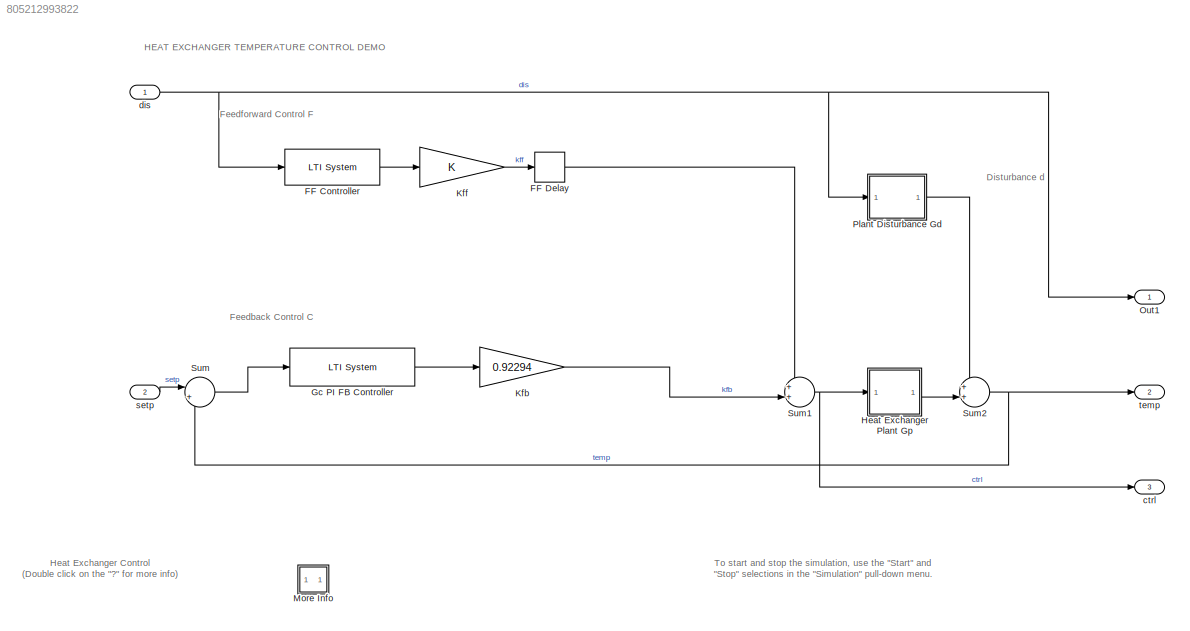
MODEL slx_805212993822
KIND model
CONFIG AbsTol = auto
CONFIG EnableMultiTasking = on
CONFIG FixedStep = 2
CONFIG MaxStep = auto
CONFIG MinStep = auto
CONFIG RelTol = 1e-3
CONFIG SampleTimeConstraint = Unconstrained
CONFIG Solver = ode4
CONFIG SolverName = ode4
CONFIG StartTime = 0.0
CONFIG StopTime = 200
BLOCK [Reference] FF Controller  REF=cstblocks/LTI System
  Ports = [1, 1]
  SourceBlock = cstblocks/LTI System
  SourceProductBaseCode = CT
  SourceType = LTI Block
BLOCK [TransportDelay] FF Delay
  CloseFcn = disp('hello')
  DelayTime = 25
  Ports = [1, 1]
BLOCK [Reference] Gc PI FB Controller  REF=cstblocks/LTI System
  Ports = [1, 1]
  SourceBlock = cstblocks/LTI System
  SourceProductBaseCode = CT
  SourceType = LTI Block
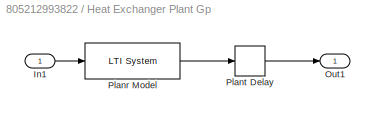
BLOCK [SubSystem] Heat Exchanger Plant Gp
  Ports = [1, 1]
  RequestExecContextInheritance = off
BLOCK [Inport] Heat Exchanger Plant Gp/In1
BLOCK [Outport] Heat Exchanger Plant Gp/Out1
BLOCK [Reference] Heat Exchanger Plant Gp/Planr Model  REF=cstblocks/LTI System
  Ports = [1, 1]
  SourceBlock = cstblocks/LTI System
  SourceProductBaseCode = CT
  SourceType = LTI Block
BLOCK [TransportDelay] Heat Exchanger Plant Gp/Plant Delay
  DelayTime = 14.7
  Ports = [1, 1]
BLOCK [Gain] Kfb
  CloseFcn = disp('hello')
  Gain = 0.92294
  OutDataTypeStr = Inherit: Same as input
  ParamDataTypeStr = Inherit: Same as input
  SaturateOnIntegerOverflow = on
BLOCK [Gain] Kff
  CloseFcn = disp('hello')
  OutDataTypeStr = Inherit: Same as input
  ParamDataTypeStr = Inherit: Same as input
  SaturateOnIntegerOverflow = on
BLOCK [SubSystem] More Info
  Ports = []
  RequestExecContextInheritance = off
BLOCK [Outport] Out1
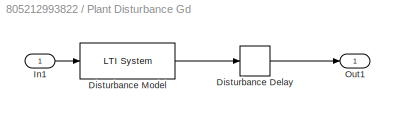
BLOCK [SubSystem] Plant Disturbance Gd
  Ports = [1, 1]
  RequestExecContextInheritance = off
BLOCK [TransportDelay] Plant Disturbance Gd/Disturbance Delay
  DelayTime = 35
  Ports = [1, 1]
BLOCK [Reference] Plant Disturbance Gd/Disturbance Model  REF=cstblocks/LTI System
  Ports = [1, 1]
  SourceBlock = cstblocks/LTI System
  SourceProductBaseCode = CT
  SourceType = LTI Block
BLOCK [Inport] Plant Disturbance Gd/In1
BLOCK [Outport] Plant Disturbance Gd/Out1
BLOCK [Sum] Sum
  InputSameDT = on
  Inputs = |+-
  OutDataTypeStr = Inherit: Same as first input
  Ports = [2, 1]
  SaturateOnIntegerOverflow = on
BLOCK [Sum] Sum1
  InputSameDT = on
  Inputs = ++|
  OutDataTypeStr = Inherit: Same as first input
  Ports = [2, 1]
  SaturateOnIntegerOverflow = on
BLOCK [Sum] Sum2
  InputSameDT = on
  Inputs = ++|
  OutDataTypeStr = Inherit: Same as first input
  Ports = [2, 1]
  SaturateOnIntegerOverflow = on
BLOCK [Outport] ctrl
  Port = 3
BLOCK [Inport] dis
BLOCK [Inport] setp
  Port = 2
BLOCK [Outport] temp
  Port = 2
ANNOTATION (root): Disturbance d
ANNOTATION (root): Feedback Control C
ANNOTATION (root): Feedforward Control F
ANNOTATION (root): HEAT EXCHANGER TEMPERATURE CONTROL DEMO
ANNOTATION (root): Heat Exchanger Control (Double click on the "?" for more info)
ANNOTATION (root): To start and stop the simulation, use the "Start" and "Stop" selections in the "Simulation" pull-down menu.
ANNOTATION More Info: This demonstration shows the temperature control of a continuous stirred tank reactor (CSTR) using a heat exchanger. The controllers have been designed to regulate the temperature of the liquid in the tank when subject to disturbances in the temperature of inlet flow.
ANNOTATION More Info: Try experimenting with switching between using Feedforward and/or Feedback control. Type heatex at the MATLAB prompt to see the demo.
LINE FF Controller:1 -> Kff:1
LINE FF Delay:1 -> Sum1:1
LINE Gc PI FB Controller:1 -> Kfb:1
LINE Heat Exchanger Plant Gp/In1:1 -> Heat Exchanger Plant Gp/Planr Model:1
LINE Heat Exchanger Plant Gp/Planr Model:1 -> Heat Exchanger Plant Gp/Plant Delay:1
LINE Heat Exchanger Plant Gp/Plant Delay:1 -> Heat Exchanger Plant Gp/Out1:1
LINE Heat Exchanger Plant Gp:1 -> Sum2:2
LINE Kfb:1 -> Sum1:2
LINE Kff:1 -> FF Delay:1
LINE Plant Disturbance Gd/Disturbance Delay:1 -> Plant Disturbance Gd/Out1:1
LINE Plant Disturbance Gd/Disturbance Model:1 -> Plant Disturbance Gd/Disturbance Delay:1
LINE Plant Disturbance Gd/In1:1 -> Plant Disturbance Gd/Disturbance Model:1
LINE Plant Disturbance Gd:1 -> Sum2:1
NET Sum1:1 -> Heat Exchanger Plant Gp:1, ctrl:1
NET Sum2:1 -> Sum:2, temp:1
LINE Sum:1 -> Gc PI FB Controller:1
NET dis:1 -> FF Controller:1, Out1:1, Plant Disturbance Gd:1
LINE setp:1 -> Sum:1
note: NET lines group one-source signal fan-out (src -> all destinations, sorted); 1:1 wires keep LINE
